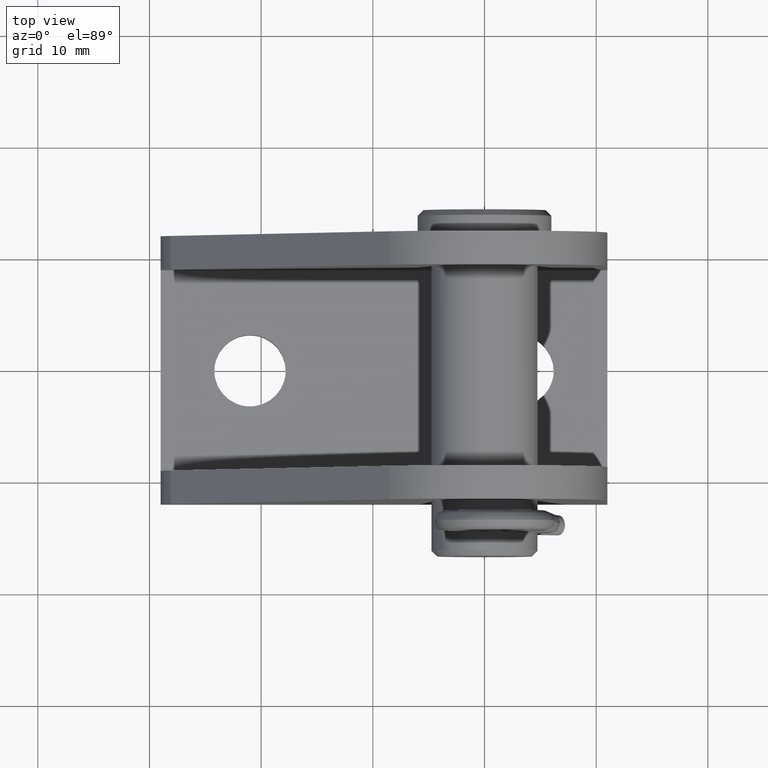
[diagram: clean part render]
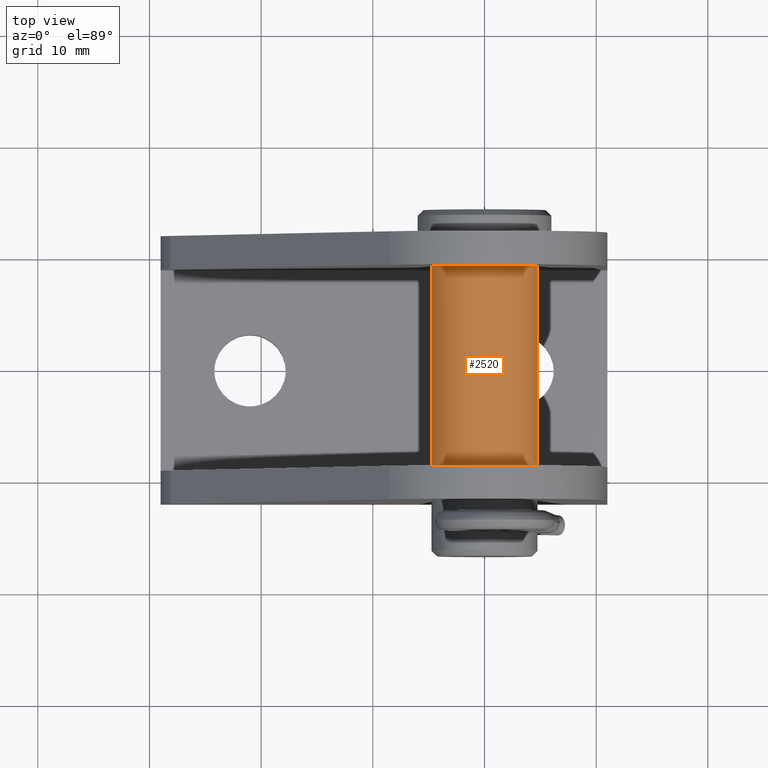
[diagram: same view with one face highlighted and labeled with its STEP entity id]
A machine part, top view. The second image highlights one B-rep face of the part: STEP entity #2520.
In plain terms, the highlighted face is a freeform B-spline surface patch.
Its self-contained STEP definition (entity closure, byte-faithful):
#2359=CARTESIAN_POINT('',(-4.735357487672236,9.000000000000913,-0.372678767767072));
#2360=VERTEX_POINT('',#2359);
#2374=CARTESIAN_POINT('',(4.735357487672065,9.000000000000913,0.372678767767072));
#2375=VERTEX_POINT('',#2374);
#2391=CARTESIAN_POINT('',(4.735357485831884,-8.999999999999149,0.372678791149027));
#2392=VERTEX_POINT('',#2391);
#2393=CARTESIAN_POINT('',(4.735357487672065,9.000000000000913,0.372678767767072));
#2394=CARTESIAN_POINT('',(4.735357485831884,-8.999999999999149,0.372678791149027));
#2395=QUASI_UNIFORM_CURVE('',1,(#2393,#2394),.UNSPECIFIED.,.F.,.U.);
#2396=EDGE_CURVE('',#2375,#2392,#2395,.T.);
#2415=CARTESIAN_POINT('',(-4.735357485832054,-8.999999999999151,-0.372678791149028));
#2416=VERTEX_POINT('',#2415);
#2430=CARTESIAN_POINT('',(-4.735357487672236,9.000000000000913,-0.372678767767072));
#2431=CARTESIAN_POINT('',(-4.735357485832054,-8.999999999999151,-0.372678791149028));
#2432=QUASI_UNIFORM_CURVE('',1,(#2430,#2431),.UNSPECIFIED.,.F.,.U.);
#2433=EDGE_CURVE('',#2360,#2416,#2432,.T.);
#2438=CARTESIAN_POINT('',(4.735357335232362,9.450000000000914,0.372680704707273));
#2439=CARTESIAN_POINT('',(4.362676630525088,9.450000000000914,5.108038039939720));
#2440=CARTESIAN_POINT('',(-0.372680704707359,9.450000000000914,4.735357335232447));
#2441=CARTESIAN_POINT('',(-5.108038039939807,9.450000000000914,4.362676630525173));
#2442=CARTESIAN_POINT('',(-4.735357335232532,9.450000000000914,-0.372680704707273));
#2443=CARTESIAN_POINT('',(4.735357335232362,-9.461249999999158,0.372680704707273));
#2444=CARTESIAN_POINT('',(4.362676630525088,-9.461249999999160,5.108038039939720));
#2445=CARTESIAN_POINT('',(-0.372680704707359,-9.461249999999158,4.735357335232447));
#2446=CARTESIAN_POINT('',(-5.108038039939807,-9.461249999999160,4.362676630525173));
#2447=CARTESIAN_POINT('',(-4.735357335232532,-9.461249999999158,-0.372680704707273));
#2455=(BOUNDED_SURFACE()B_SPLINE_SURFACE(2,1,((#2438,#2443),(#2439,#2444),(#2440,#2445),(#2441,#2446),(#2442,#2447)),.UNSPECIFIED.,.F.,.F.,.U.)B_SPLINE_SURFACE_WITH_KNOTS((3,2,3),(2,2),(0.0,7.870057685088953,15.740115370177911),(0.0,18.911250000000070),.UNSPECIFIED.)GEOMETRIC_REPRESENTATION_ITEM()RATIONAL_B_SPLINE_SURFACE(((1.0,1.0),(0.707106781186548,0.707106781186548),(1.0,1.0),(0.707106781186548,0.707106781186548),(1.0,1.0)))REPRESENTATION_ITEM('')SURFACE());
#2456=CARTESIAN_POINT('',(-8.526513E-014,9.000000000000910,4.750000000000090));
#2457=VERTEX_POINT('',#2456);
#2458=CARTESIAN_POINT('',(-4.735357487672236,9.000000000000913,-0.372678767767072));
#2459=CARTESIAN_POINT('',(-4.749999999999788,9.000000000000913,-0.186627035321980));
#2460=CARTESIAN_POINT('',(-4.749999999999795,9.000000000000911,2.975081E-014));
#2461=CARTESIAN_POINT('',(-4.749999999999991,9.000000000000911,4.750000000000105));
#2462=CARTESIAN_POINT('',(-8.526513E-014,9.000000000000910,4.750000000000090));
#2470=(BOUNDED_CURVE()B_SPLINE_CURVE(2,(#2458,#2459,#2460,#2461,#2462),.UNSPECIFIED.,.F.,.U.)B_SPLINE_CURVE_WITH_KNOTS((3,2,3),(0.236331370751868,0.250000000000000,0.500000000000000),.UNSPECIFIED.)CURVE()GEOMETRIC_REPRESENTATION_ITEM()RATIONAL_B_SPLINE_CURVE((0.969723502505077,0.983986204730988,1.0,0.707106781186548,1.0))REPRESENTATION_ITEM(''));
#2471=EDGE_CURVE('',#2360,#2457,#2470,.T.);
#2472=ORIENTED_EDGE('',*,*,#2471,.F.);
#2473=ORIENTED_EDGE('',*,*,#2433,.T.);
#2474=CARTESIAN_POINT('',(-8.526513E-014,-8.999999999999151,4.750000000000090));
#2475=VERTEX_POINT('',#2474);
#2476=CARTESIAN_POINT('',(-4.735357485832054,-8.999999999999151,-0.372678791149028));
#2477=CARTESIAN_POINT('',(-4.749999999999795,-8.999999999999149,-0.186627047067211));
#2478=CARTESIAN_POINT('',(-4.749999999999803,-8.999999999999147,2.921668E-014));
#2479=CARTESIAN_POINT('',(-4.749999999999997,-8.999999999999151,4.750000000000103));
#2480=CARTESIAN_POINT('',(-8.526513E-014,-8.999999999999151,4.750000000000090));
#2488=(BOUNDED_CURVE()B_SPLINE_CURVE(2,(#2476,#2477,#2478,#2479,#2480),.UNSPECIFIED.,.F.,.U.)B_SPLINE_CURVE_WITH_KNOTS((3,2,3),(0.236331369905419,0.250000000000000,0.500000000000000),.UNSPECIFIED.)CURVE()GEOMETRIC_REPRESENTATION_ITEM()RATIONAL_B_SPLINE_CURVE((0.969723500738600,0.983986203739311,1.0,0.707106781186548,1.0))REPRESENTATION_ITEM(''));
#2489=EDGE_CURVE('',#2416,#2475,#2488,.T.);
#2490=ORIENTED_EDGE('',*,*,#2489,.T.);
#2491=CARTESIAN_POINT('',(-8.526513E-014,-8.999999999999151,4.750000000000090));
#2492=CARTESIAN_POINT('',(4.390856615207948,-8.999999999999149,4.750000000000076));
#2493=CARTESIAN_POINT('',(4.735357485831884,-8.999999999999149,0.372678791149027));
#2501=(BOUNDED_CURVE()B_SPLINE_CURVE(2,(#2491,#2492,#2493),.UNSPECIFIED.,.F.,.U.)B_SPLINE_CURVE_WITH_KNOTS((3,3),(0.500000000000000,0.736331369905419),.UNSPECIFIED.)CURVE()GEOMETRIC_REPRESENTATION_ITEM()RATIONAL_B_SPLINE_CURVE((1.0,0.723120577447237,0.969723500738600))REPRESENTATION_ITEM(''));
#2502=EDGE_CURVE('',#2475,#2392,#2501,.T.);
#2503=ORIENTED_EDGE('',*,*,#2502,.T.);
#2504=ORIENTED_EDGE('',*,*,#2396,.F.);
#2505=CARTESIAN_POINT('',(-8.526513E-014,9.000000000000910,4.750000000000090));
#2506=CARTESIAN_POINT('',(4.390856636955884,9.000000000000911,4.750000000000074));
#2507=CARTESIAN_POINT('',(4.735357487672065,9.000000000000913,0.372678767767072));
#2515=(BOUNDED_CURVE()B_SPLINE_CURVE(2,(#2505,#2506,#2507),.UNSPECIFIED.,.F.,.U.)B_SPLINE_CURVE_WITH_KNOTS((3,3),(0.500000000000000,0.736331370751868),.UNSPECIFIED.)CURVE()GEOMETRIC_REPRESENTATION_ITEM()RATIONAL_B_SPLINE_CURVE((1.0,0.723120576455560,0.969723502505077))REPRESENTATION_ITEM(''));
#2516=EDGE_CURVE('',#2457,#2375,#2515,.T.);
#2517=ORIENTED_EDGE('',*,*,#2516,.F.);
#2518=EDGE_LOOP('',(#2472,#2473,#2490,#2503,#2504,#2517));
#2519=FACE_OUTER_BOUND('',#2518,.T.);
#2520=ADVANCED_FACE('',(#2519),#2455,.T.);